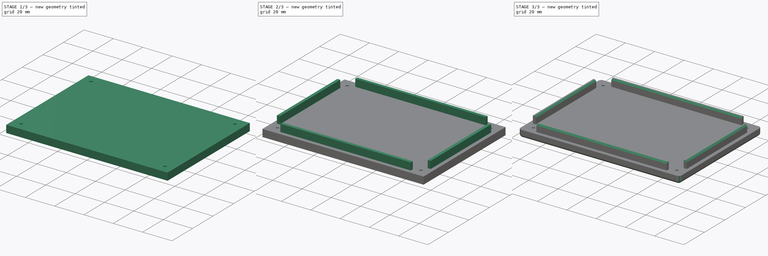
[diagram: build sequence overview — one tinted view per stage of 3, left to right]
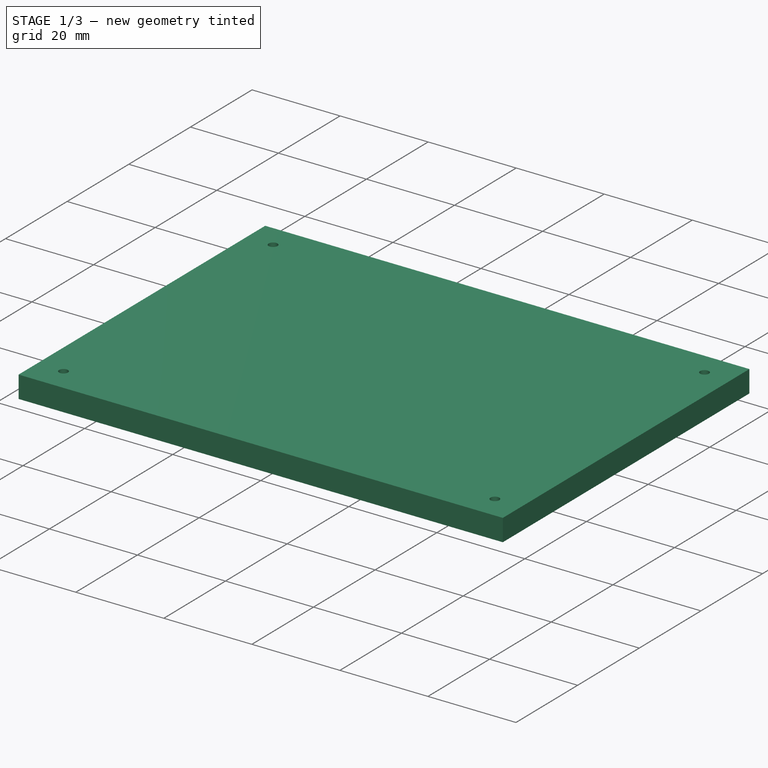
[diagram: stage 1 of 3 — iso view after this stage's code; geometry added in this stage tinted green]
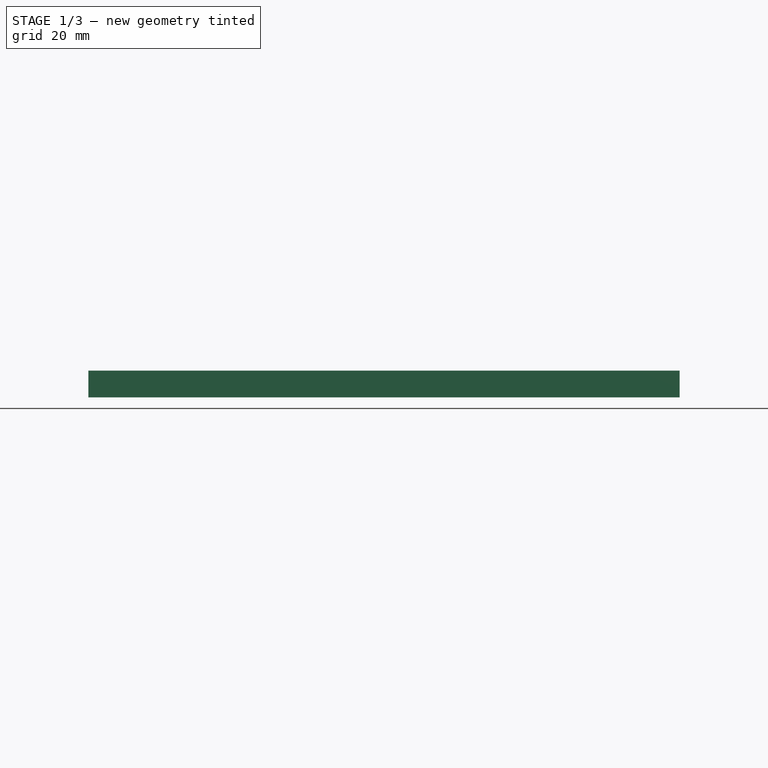
[diagram: stage 1 of 3 — front view after this stage's code; geometry added in this stage tinted green]
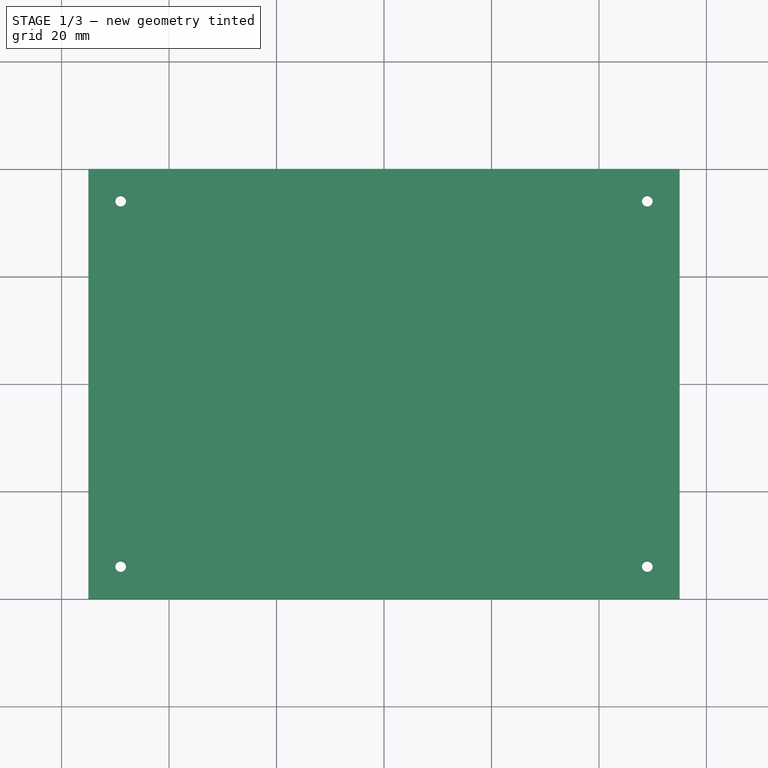
[diagram: stage 1 of 3 — top view after this stage's code; geometry added in this stage tinted green]
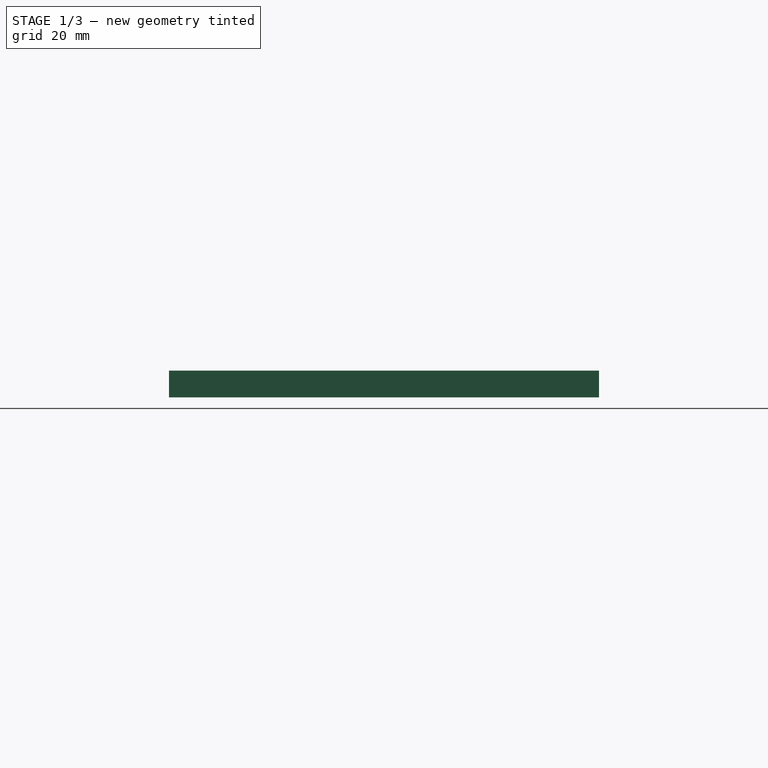
[diagram: stage 1 of 3 — right view after this stage's code; geometry added in this stage tinted green]
FCSTD DOCUMENT  (FreeCAD 0.18R16146 (Git))
Label: v_w-tapa-paso 6
License: All rights reserved
LicenseURL: http://en.wikipedia.org/wiki/All_rights_reserved
objects: Sketcher::SketchObject×3, PartDesign::Pad×2, PartDesign::Chamfer×2, PartDesign::Pocket×1, PartDesign::Fillet×1, PartDesign::Body×1
note: 13 computed .brp shape members not serialized (recipe doc carries the construction recipe); baked Part::Feature solids carry a one-line shape summary decoded from their .brp

FEATURE [Sketcher::SketchObject] Sketch
  MapMode = 5
  Support = -> [XY_Plane]
  sketch-geometry (4):
    g0: LineSegment StartX=-55 StartY=-40 StartZ=0 EndX=55 EndY=-40 EndZ=0
    g1: LineSegment StartX=55 StartY=-40 StartZ=0 EndX=55 EndY=40 EndZ=0
    g2: LineSegment StartX=55 StartY=40 StartZ=0 EndX=-55 EndY=40 EndZ=0
    g3: LineSegment StartX=-55 StartY=40 StartZ=0 EndX=-55 EndY=-40 EndZ=0
  constraints (12):
    c: Coincident(g0,g1)
    c: Coincident(g1,g2)
    c: Coincident(g2,g3)
    c: Coincident(g3,g0)
    c: Horizontal(g0)
    c: Horizontal(g2)
    c: Vertical(g1)
    c: Vertical(g3)
    c: DistanceX(g-1,g1) = 55
    c: DistanceY(g-1,g1) = 40
    c: DistanceX(g2,g2) = 110
    c: DistanceY(g1,g1) = 80
FEATURE [PartDesign::Pad] Pad
  Length = 5
  Length2 = 100
  Profile = -> Sketch
  Type = 0
FEATURE [Sketcher::SketchObject] Sketch001
  MapMode = 5
  Placement = pos=(0,0,5) rot=(0,0,1;0rad)
  Support = -> [Pad]
  sketch-geometry (4):
    g0: Circle CenterX=49 CenterY=34 CenterZ=0 NormalX=0 NormalY=0 NormalZ=1 AngleXU=0 Radius=1
    g1: Circle CenterX=-49 CenterY=34 CenterZ=0 NormalX=0 NormalY=0 NormalZ=1 AngleXU=0 Radius=1
    g2: Circle CenterX=-49 CenterY=-34 CenterZ=0 NormalX=0 NormalY=0 NormalZ=1 AngleXU=0 Radius=1
    g3: Circle CenterX=49 CenterY=-34 CenterZ=0 NormalX=0 NormalY=0 NormalZ=1 AngleXU=0 Radius=1
  constraints (9):
    c: Radius(g0) = 1
    c: DistanceX(g-1,g0) = 49
    c: DistanceY(g-1,g0) = 34
    c: Equal(g0,g1) = 2.1
    c: Equal(g0,g2) = 2.1
    c: Equal(g0,g3) = 2.1
    c: Symmetric(g0,g1,g-2)
    c: Symmetric(g1,g2,g-1)
    c: Symmetric(g2,g3,g-2)
FEATURE [PartDesign::Pocket] Pocket
  BaseFeature = -> Pad
  Length = 5
  Length2 = 100
  Profile = -> Sketch001
  Type = 0
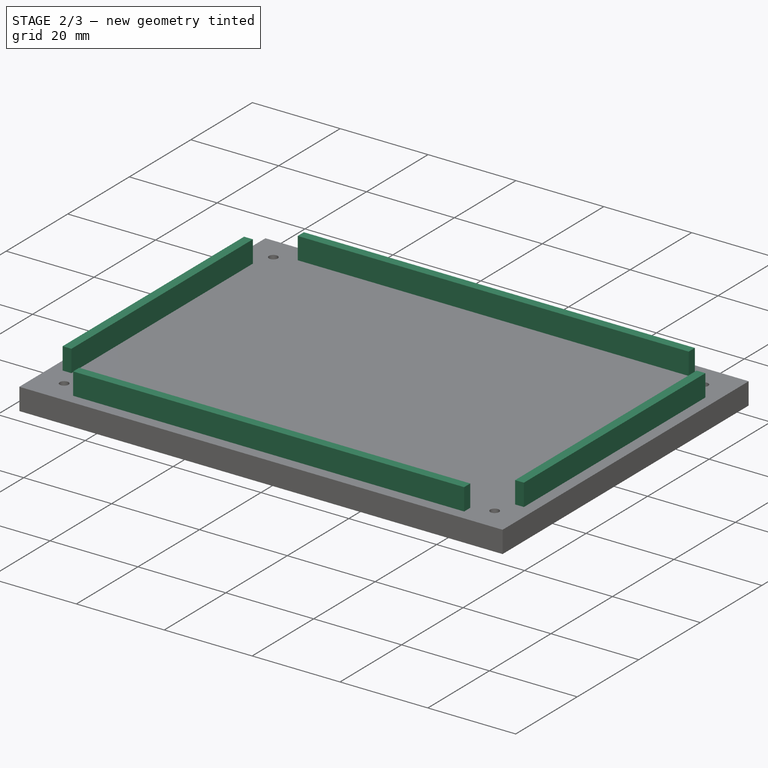
[diagram: stage 2 of 3 — iso view after this stage's code; geometry added in this stage tinted green]
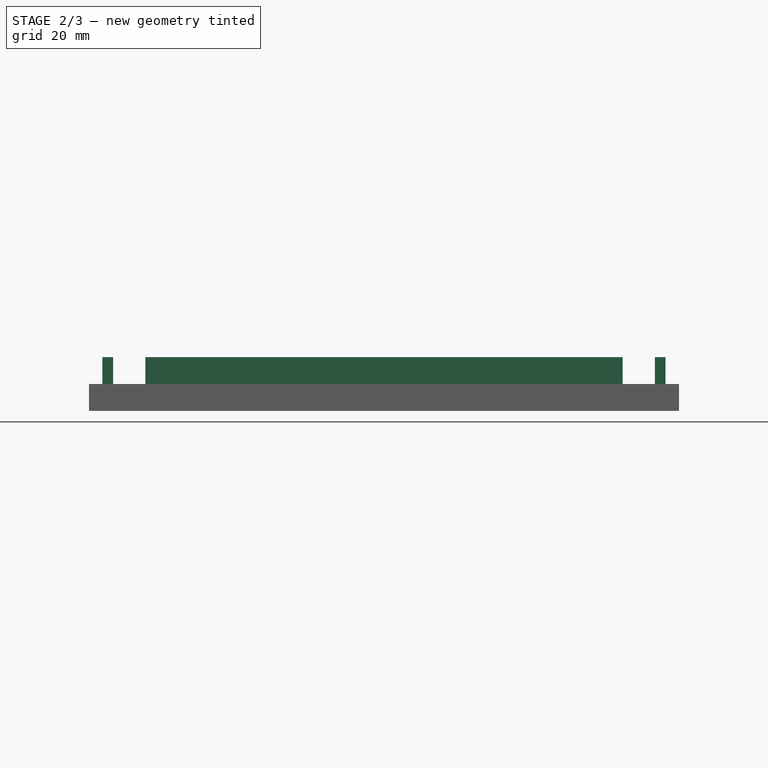
[diagram: stage 2 of 3 — front view after this stage's code; geometry added in this stage tinted green]
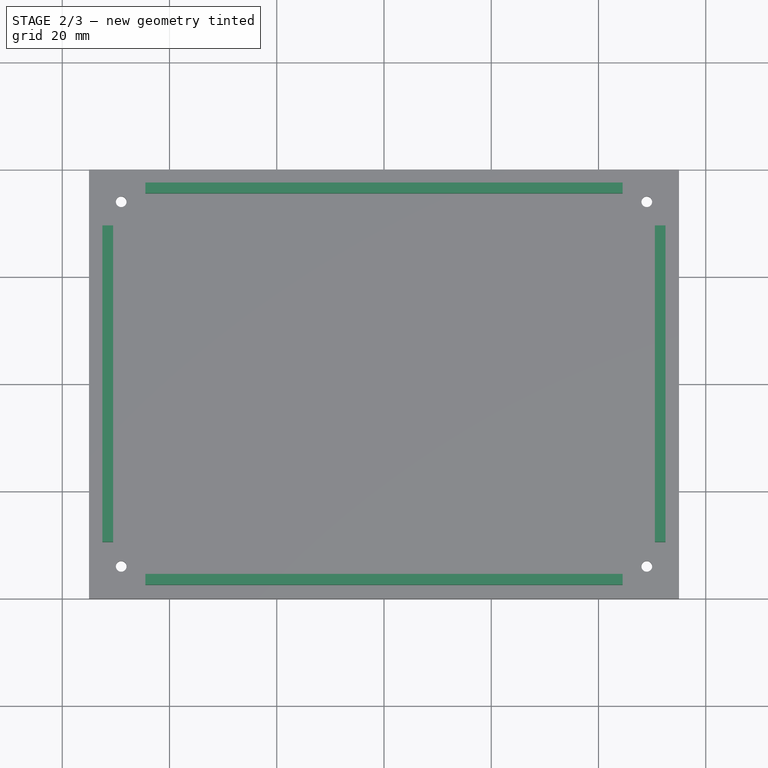
[diagram: stage 2 of 3 — top view after this stage's code; geometry added in this stage tinted green]
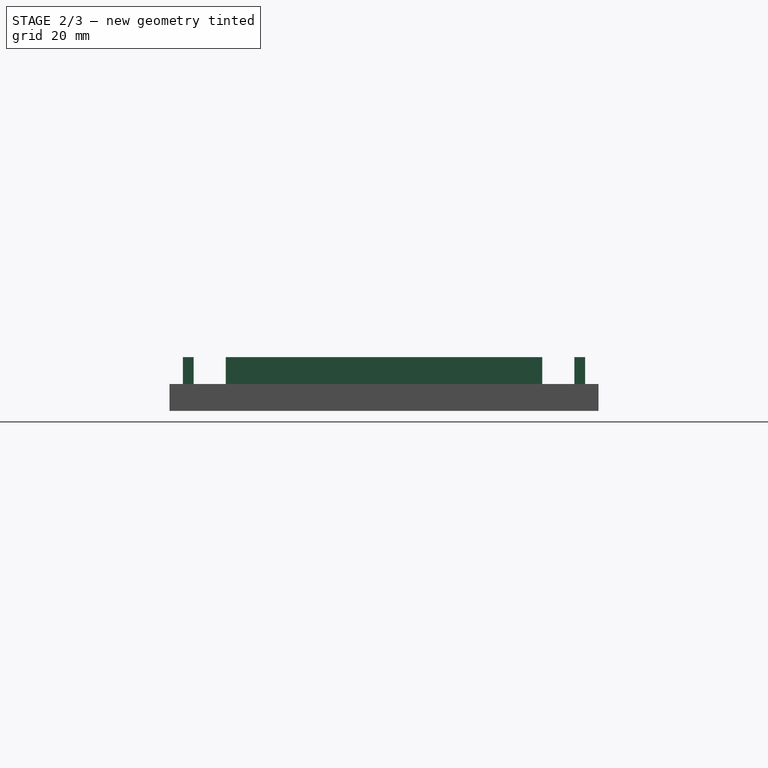
[diagram: stage 2 of 3 — right view after this stage's code; geometry added in this stage tinted green]
FEATURE [PartDesign::Chamfer] Chamfer
  Base = -> Pocket [Edge15,Edge14,Edge13,Edge12]
  BaseFeature = -> Pocket
  Size = 1
FEATURE [Sketcher::SketchObject] Sketch002
  MapMode = 5
  Placement = pos=(0,0,5) rot=(0,0,1;0rad)
  Support = -> [Chamfer]
  sketch-geometry (16):
    g0: LineSegment StartX=-44.5 StartY=37.5 StartZ=0 EndX=44.5 EndY=37.5 EndZ=0
    g1: LineSegment StartX=44.5 StartY=37.5 StartZ=0 EndX=44.5 EndY=35.5 EndZ=0
    g2: LineSegment StartX=44.5 StartY=35.5 StartZ=0 EndX=-44.5 EndY=35.5 EndZ=0
    g3: LineSegment StartX=-44.5 StartY=35.5 StartZ=0 EndX=-44.5 EndY=37.5 EndZ=0
    g4: LineSegment StartX=-44.5 StartY=-35.5 StartZ=0 EndX=44.5 EndY=-35.5 EndZ=0
    g5: LineSegment StartX=44.5 StartY=-35.5 StartZ=0 EndX=44.5 EndY=-37.5 EndZ=0
    g6: LineSegment StartX=44.5 StartY=-37.5 StartZ=0 EndX=-44.5 EndY=-37.5 EndZ=0
    g7: LineSegment StartX=-44.5 StartY=-37.5 StartZ=0 EndX=-44.5 EndY=-35.5 EndZ=0
    g8: LineSegment StartX=52.5 StartY=29.5 StartZ=0 EndX=50.5 EndY=29.5 EndZ=0
    g9: LineSegment StartX=50.5 StartY=29.5 StartZ=0 EndX=50.5 EndY=-29.5 EndZ=0
    g10: LineSegment StartX=50.5 StartY=-29.5 StartZ=0 EndX=52.5 EndY=-29.5 EndZ=0
    g11: LineSegment StartX=52.5 StartY=-29.5 StartZ=0 EndX=52.5 EndY=29.5 EndZ=0
    g12: LineSegment StartX=-50.5 StartY=29.5 StartZ=0 EndX=-52.5 EndY=29.5 EndZ=0
    g13: LineSegment StartX=-52.5 StartY=29.5 StartZ=0 EndX=-52.5 EndY=-29.5 EndZ=0
    g14: LineSegment StartX=-52.5 StartY=-29.5 StartZ=0 EndX=-50.5 EndY=-29.5 EndZ=0
    g15: LineSegment StartX=-50.5 StartY=-29.5 StartZ=0 EndX=-50.5 EndY=29.5 EndZ=0
  constraints (43):
    c: Coincident(g0,g1)
    c: Coincident(g1,g2)
    c: Coincident(g2,g3)
    c: Coincident(g3,g0)
    c: Horizontal(g0)
    c: Horizontal(g2)
    c: Vertical(g1)
    c: Vertical(g3)
    c: DistanceY(g1,g1) = 2
    c: DistanceY(g-1,g0) = 37.5
    c: DistanceX(g-1,g0) = 44.5
    c: Coincident(g4,g5)
    c: Coincident(g5,g6)
    c: Coincident(g6,g7)
    c: Coincident(g7,g4)
    c: Horizontal(g4)
    c: Vertical(g5)
    c: Vertical(g7)
    c: Equal(g1,g5) = 2
    c: Symmetric(g0,g5,g-1)
    c: Symmetric(g0,g6,g-1)
    c: DistanceX(g0,g0) = 89
    c: Coincident(g8,g9)
    c: Coincident(g9,g10)
    c: Coincident(g10,g11)
    c: Coincident(g11,g8)
    c: Horizontal(g8)
    c: Horizontal(g10)
    c: Vertical(g9)
    c: DistanceX(g8,g8) = 2
    c: DistanceY(g-1,g8) = 29.5
    c: DistanceX(g-1,g8) = 52.5
    c: Symmetric(g8,g10,g-1)
    c: Coincident(g12,g13)
    c: Coincident(g13,g14)
    c: Coincident(g14,g15)
    c: Coincident(g15,g12)
    c: Horizontal(g12)
    c: Horizontal(g14)
    c: Equal(g8,g12) = 2
    c: Symmetric(g12,g8,g-2)
    c: Symmetric(g13,g10,g-2)
    c: DistanceX(g13,g14) = 2
FEATURE [PartDesign::Pad] Pad001
  BaseFeature = -> Chamfer
  Length = 5
  Length2 = 100
  Profile = -> Sketch002
  Type = 0
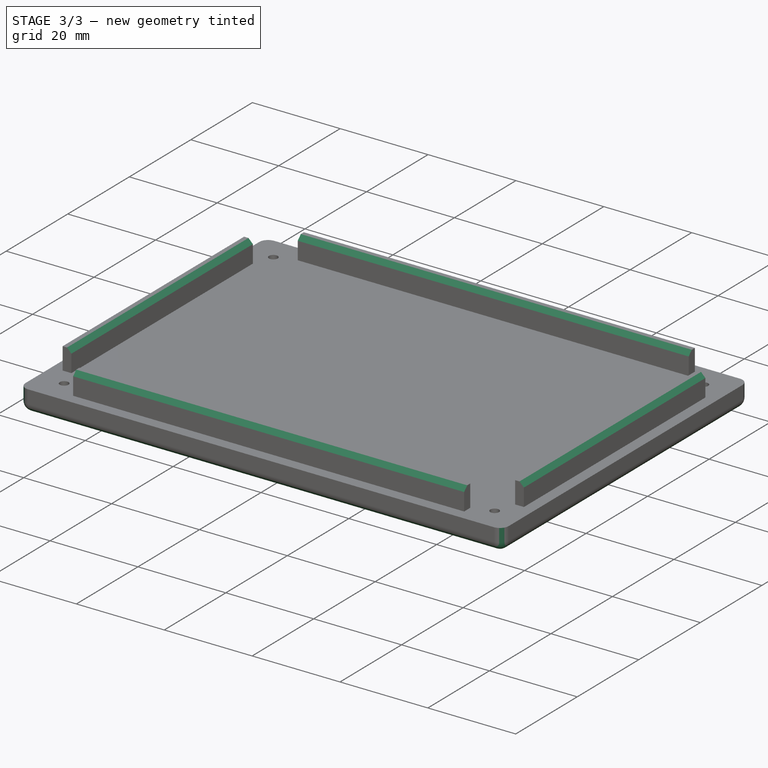
[diagram: stage 3 of 3 — iso view after this stage's code; geometry added in this stage tinted green]
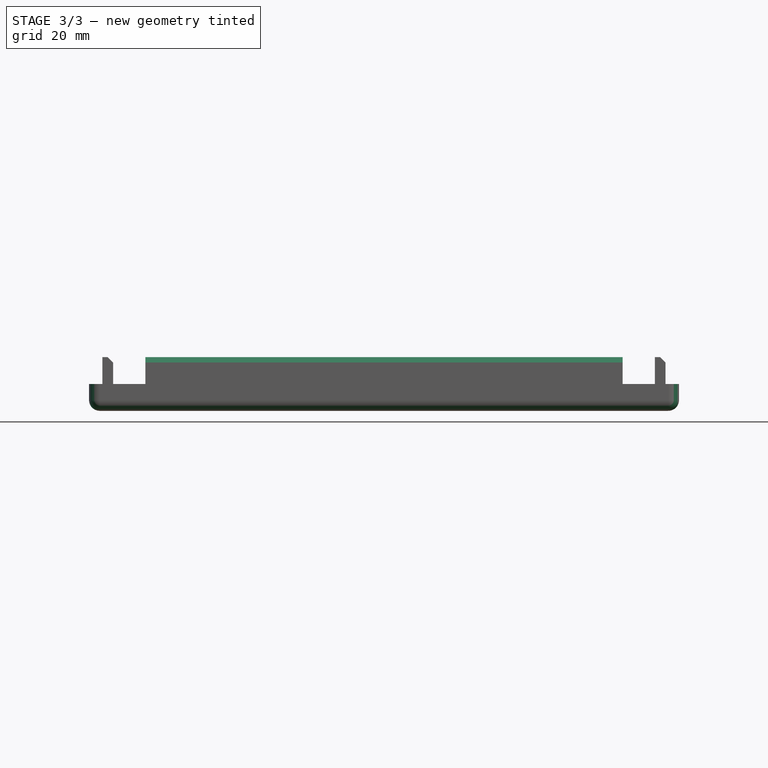
[diagram: stage 3 of 3 — front view after this stage's code; geometry added in this stage tinted green]
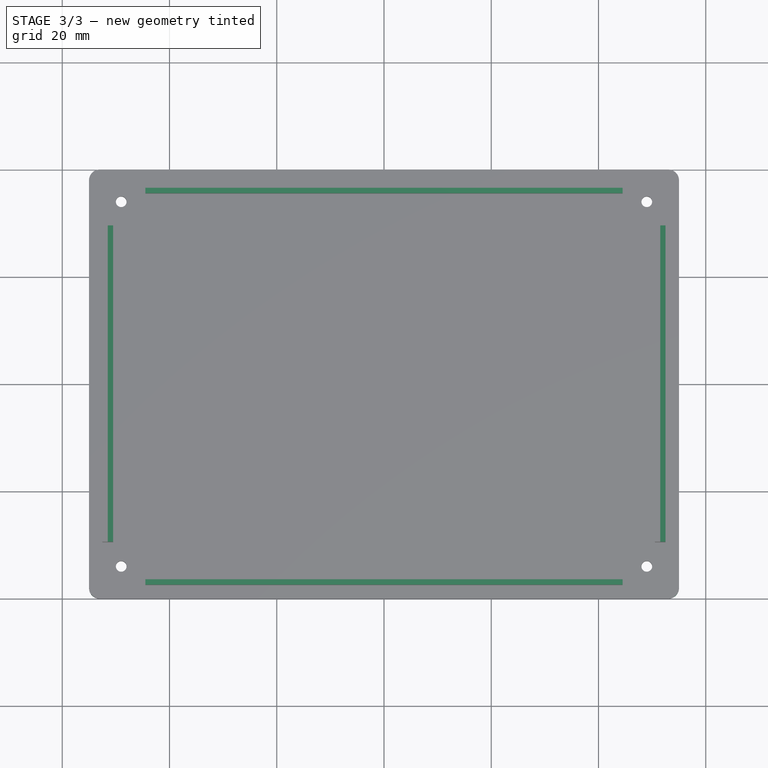
[diagram: stage 3 of 3 — top view after this stage's code; geometry added in this stage tinted green]
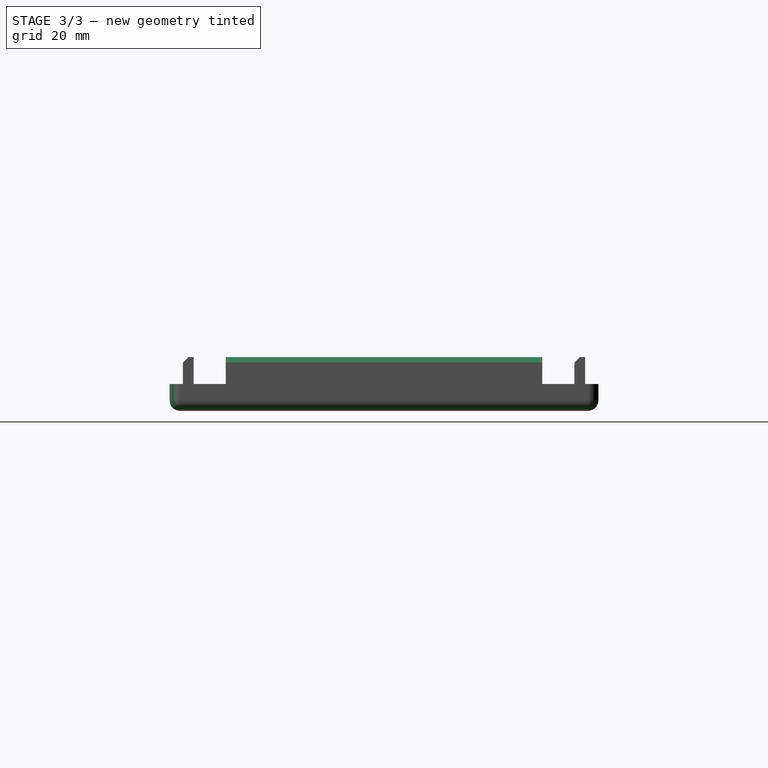
[diagram: stage 3 of 3 — right view after this stage's code; geometry added in this stage tinted green]
FEATURE [PartDesign::Chamfer] Chamfer001
  Base = -> Pad001 [Edge77,Edge72,Edge64,Edge53]
  BaseFeature = -> Pad001
  Size = 1
FEATURE [PartDesign::Fillet] Fillet
  Base = -> Chamfer001 [Edge36,Edge40,Edge39,Edge43,Edge41,Edge42,Edge37,Edge38]
  BaseFeature = -> Chamfer001
  Radius = 2
FEATURE [PartDesign::Body] Body
  Group = -> [Sketch,Pad,Sketch001,Pocket,Chamfer,Sketch002,Pad001,Chamfer001,Fillet]
  Origin = -> Origin
  Tip = -> Fillet
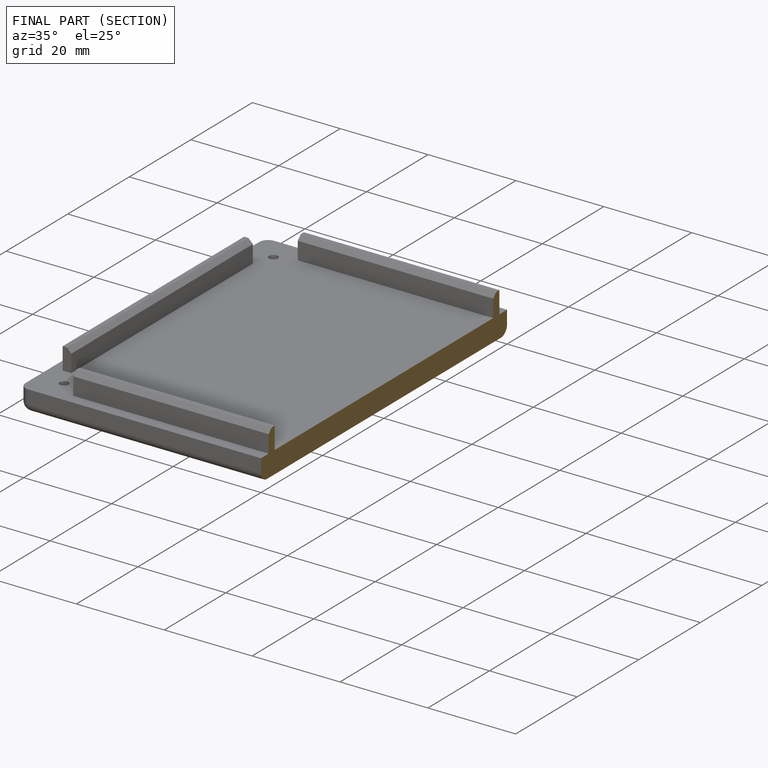
[diagram: finished part — half-section view (interior)]
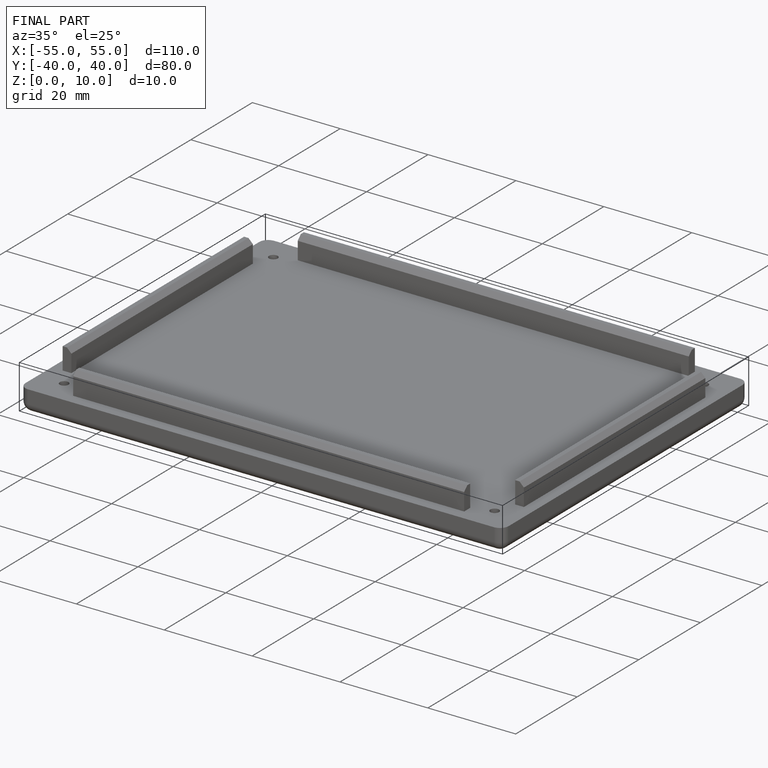
[diagram: finished part — iso view with bounding-box wireframe]
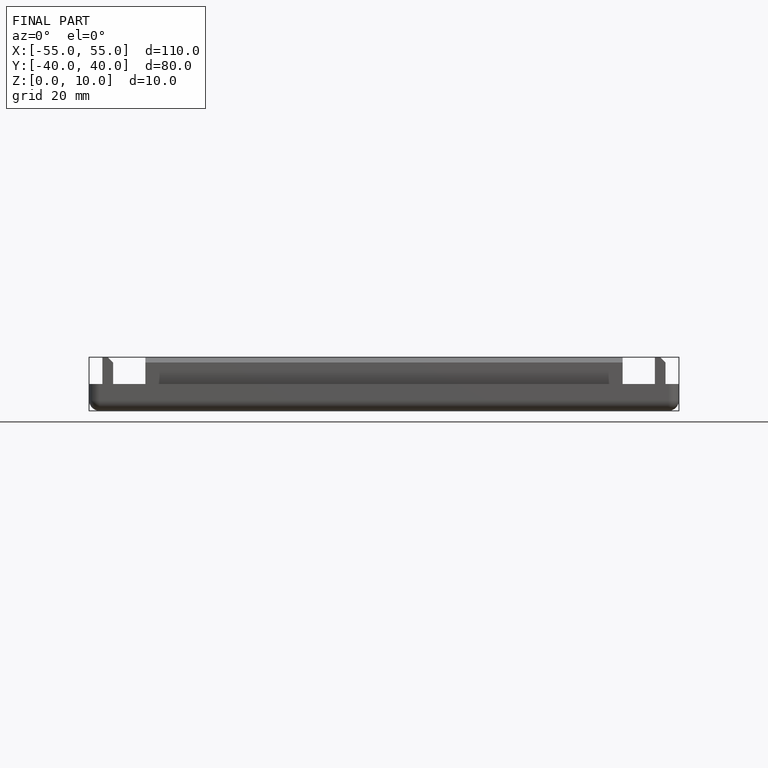
[diagram: finished part — front view with bounding-box wireframe]
